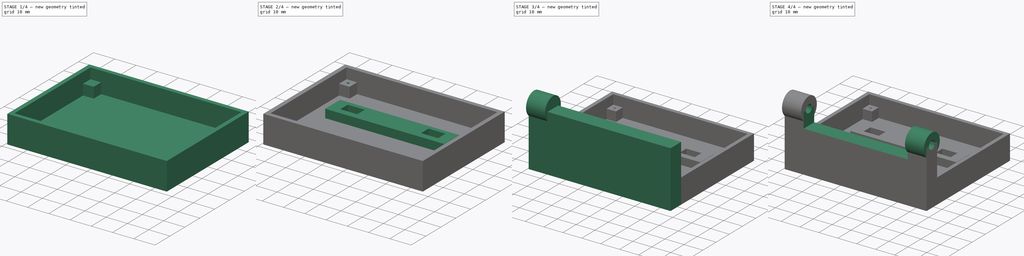
[diagram: build sequence overview — one tinted view per stage of 4, left to right]
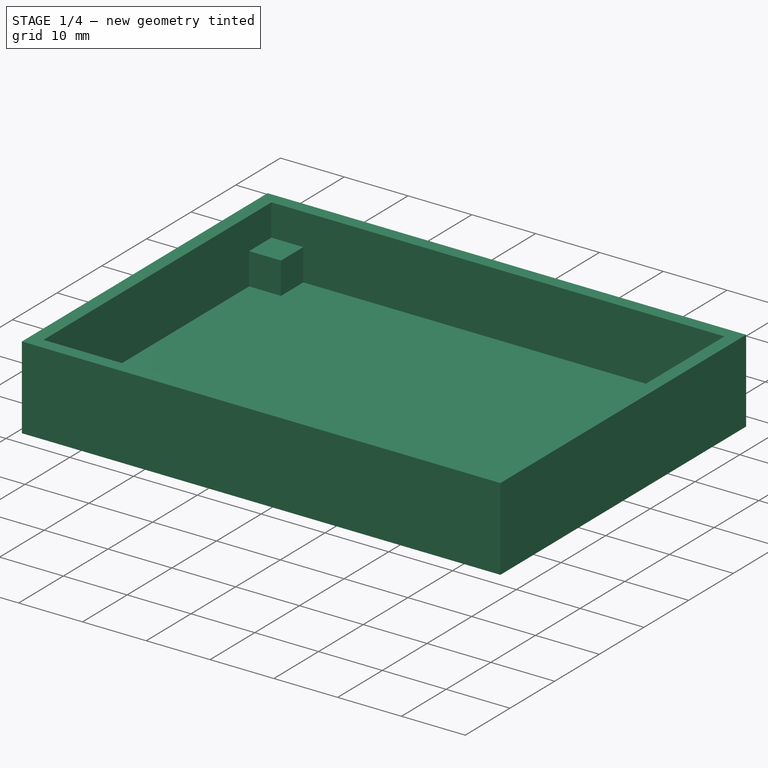
[diagram: stage 1 of 4 — iso view after this stage's code; geometry added in this stage tinted green]
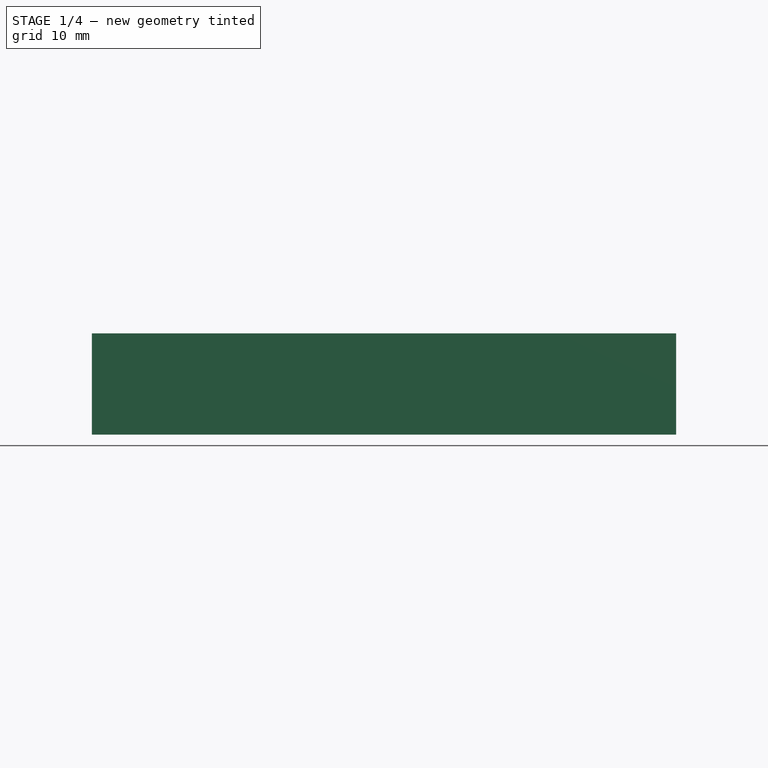
[diagram: stage 1 of 4 — front view after this stage's code; geometry added in this stage tinted green]
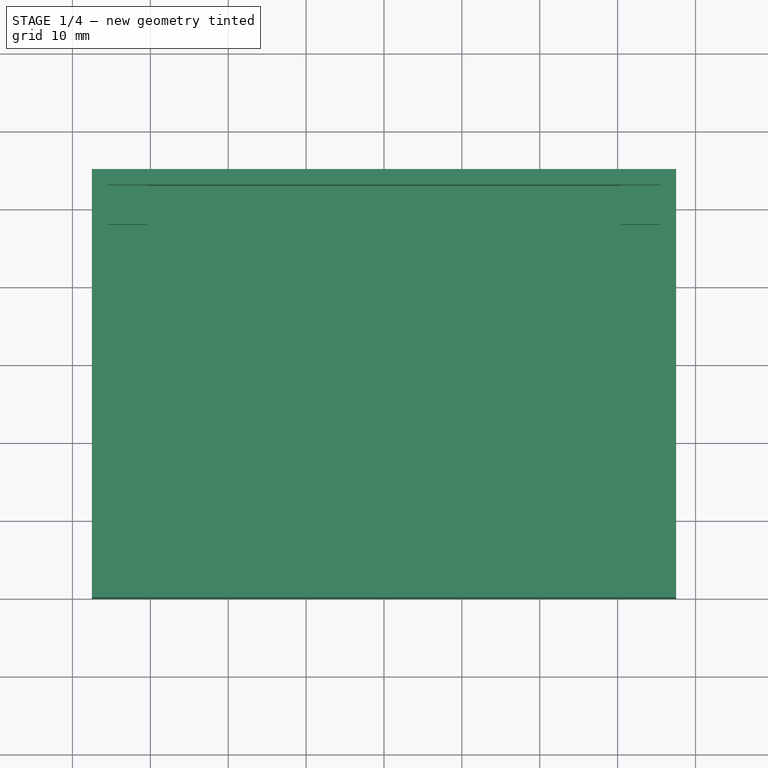
[diagram: stage 1 of 4 — top view after this stage's code; geometry added in this stage tinted green]
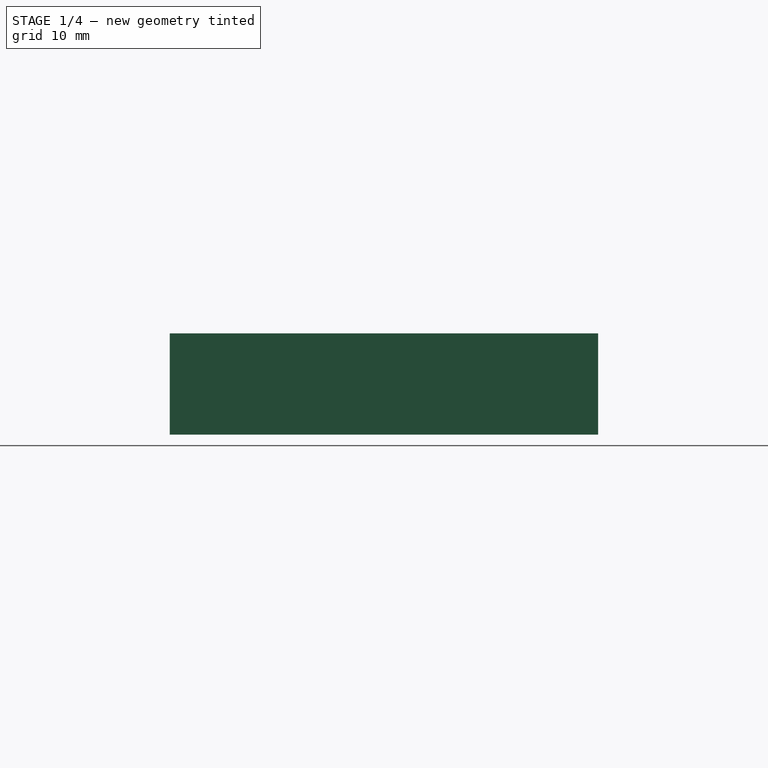
[diagram: stage 1 of 4 — right view after this stage's code; geometry added in this stage tinted green]
FCSTD DOCUMENT  (FreeCAD 0.18R16117 (Git))
Label: TCM2-ModuloWiFI1.1
License: All rights reserved
LicenseURL: http://en.wikipedia.org/wiki/All_rights_reserved
objects: Sketcher::SketchObject×11, PartDesign::Pad×7, PartDesign::Pocket×4, PartDesign::Body×1
note: 34 computed .brp shape members not serialized (recipe doc carries the construction recipe); baked Part::Feature solids carry a one-line shape summary decoded from their .brp

FEATURE [Sketcher::SketchObject] Sketch
  MapMode = 5
  Support = -> [XY_Plane]
  sketch-geometry (4):
    g0: LineSegment StartX=-37.5 StartY=55 StartZ=0 EndX=37.5 EndY=55 EndZ=0
    g1: LineSegment StartX=37.5 StartY=55 StartZ=0 EndX=37.5 EndY=0 EndZ=0
    g2: LineSegment StartX=37.5 StartY=0 StartZ=0 EndX=-37.5 EndY=0 EndZ=0
    g3: LineSegment StartX=-37.5 StartY=0 StartZ=0 EndX=-37.5 EndY=55 EndZ=0
  constraints (12):
    c: Coincident(g0,g1)
    c: Coincident(g1,g2)
    c: Coincident(g2,g3)
    c: Coincident(g3,g0)
    c: Horizontal(g0)
    c: Horizontal(g2)
    c: Vertical(g1)
    c: Vertical(g3)
    c: Distance(g2) = 75
    c: Distance(g1) = 55
    c: PointOnObject(g1,g-1)
    c: DistanceX(g2,g-1) = 37.5
FEATURE [PartDesign::Pad] Pad
  Length = 3
  Length2 = 100
  Profile = -> Sketch
  Type = 0
FEATURE [Sketcher::SketchObject] Sketch001
  MapMode = 5
  Placement = pos=(0,0,3) rot=(0,0,1;0rad)
  Support = -> [Pad]
  sketch-geometry (8):
    g0: LineSegment StartX=-37.5 StartY=55 StartZ=0 EndX=37.5 EndY=55 EndZ=0
    g1: LineSegment StartX=37.5 StartY=55 StartZ=0 EndX=37.5 EndY=0 EndZ=0
    g2: LineSegment StartX=37.5 StartY=0 StartZ=0 EndX=-37.5 EndY=0 EndZ=0
    g3: LineSegment StartX=-37.5 StartY=0 StartZ=0 EndX=-37.5 EndY=55 EndZ=0
    g4: LineSegment StartX=-35.5 StartY=53 StartZ=0 EndX=35.5 EndY=53 EndZ=0
    g5: LineSegment StartX=35.5 StartY=53 StartZ=0 EndX=35.5 EndY=2 EndZ=0
    g6: LineSegment StartX=35.5 StartY=2 StartZ=0 EndX=-35.5 EndY=2 EndZ=0
    g7: LineSegment StartX=-35.5 StartY=2 StartZ=0 EndX=-35.5 EndY=53 EndZ=0
  constraints (24):
    c: Coincident(g0,g1)
    c: Coincident(g1,g2)
    c: Coincident(g2,g3)
    c: Coincident(g3,g0)
    c: Horizontal(g0)
    c: Horizontal(g2)
    c: Vertical(g1)
    c: Vertical(g3)
    c: Coincident(g4,g5)
    c: Coincident(g5,g6)
    c: Coincident(g6,g7)
    c: Coincident(g7,g4)
    c: Horizontal(g4)
    c: Horizontal(g6)
    c: Vertical(g5)
    c: Vertical(g7)
    c: Distance(g1) = 55
    c: Distance(g2) = 75
    c: PointOnObject(g1,g-1)
    c: DistanceX(g2,g-1) = 37.5
    c: Distance(g6) = 71
    c: Distance(g5) = 51
    c: DistanceY(g1,g5) = 2
    c: DistanceX(g2,g6) = 2
FEATURE [PartDesign::Pad] Pad001
  BaseFeature = -> Pad
  Length = 10
  Length2 = 100
  Profile = -> Sketch001
  Type = 0
FEATURE [Sketcher::SketchObject] Sketch002
  MapMode = 5
  Placement = pos=(0,0,3) rot=(0,0,1;0rad)
  Support = -> [Pad001]
  sketch-geometry (16):
    g0: LineSegment StartX=-35.5 StartY=48 StartZ=0 EndX=-30.5 EndY=48 EndZ=0
    g1: LineSegment StartX=-30.5 StartY=48 StartZ=0 EndX=-30.5 EndY=53 EndZ=0
    g2: LineSegment StartX=-30.5 StartY=53 StartZ=0 EndX=-35.5 EndY=53 EndZ=0
    g3: LineSegment StartX=-35.5 StartY=53 StartZ=0 EndX=-35.5 EndY=48 EndZ=0
    g4: LineSegment StartX=30.5 StartY=48 StartZ=0 EndX=35.5 EndY=48 EndZ=0
    g5: LineSegment StartX=35.5 StartY=48 StartZ=0 EndX=35.5 EndY=53 EndZ=0
    g6: LineSegment StartX=35.5 StartY=53 StartZ=0 EndX=30.5 EndY=53 EndZ=0
    g7: LineSegment StartX=30.5 StartY=53 StartZ=0 EndX=30.5 EndY=48 EndZ=0
    g8: LineSegment StartX=30.5 StartY=2 StartZ=0 EndX=35.5 EndY=2 EndZ=0
    g9: LineSegment StartX=35.5 StartY=2 StartZ=0 EndX=35.5 EndY=7 EndZ=0
    g10: LineSegment StartX=35.5 StartY=7 StartZ=0 EndX=30.5 EndY=7 EndZ=0
    g11: LineSegment StartX=30.5 StartY=7 StartZ=0 EndX=30.5 EndY=2 EndZ=0
    g12: LineSegment StartX=-35.5 StartY=2 StartZ=0 EndX=-30.5 EndY=2 EndZ=0
    g13: LineSegment StartX=-30.5 StartY=2 StartZ=0 EndX=-30.5 EndY=7 EndZ=0
    g14: LineSegment StartX=-30.5 StartY=7 StartZ=0 EndX=-35.5 EndY=7 EndZ=0
    g15: LineSegment StartX=-35.5 StartY=7 StartZ=0 EndX=-35.5 EndY=2 EndZ=0
  constraints (48):
    c: Coincident(g0,g1)
    c: Coincident(g1,g2)
    c: Coincident(g2,g3)
    c: Coincident(g3,g0)
    c: Horizontal(g0)
    c: Horizontal(g2)
    c: Vertical(g1)
    c: Vertical(g3)
    c: Coincident(g4,g5)
    c: Coincident(g5,g6)
    c: Coincident(g6,g7)
    c: Coincident(g7,g4)
    c: Horizontal(g4)
    c: Horizontal(g6)
    c: Vertical(g5)
    c: Vertical(g7)
    c: Coincident(g8,g9)
    c: Coincident(g9,g10)
    c: Coincident(g10,g11)
    c: Coincident(g11,g8)
    c: Horizontal(g8)
    c: Horizontal(g10)
    c: Vertical(g9)
    c: Vertical(g11)
    c: Coincident(g12,g13)
    c: Coincident(g13,g14)
    c: Coincident(g14,g15)
    c: Coincident(g15,g12)
    c: Horizontal(g12)
    c: Horizontal(g14)
    c: Vertical(g13)
    c: Vertical(g15)
    c: Distance(g1) = 5
    c: Distance(g0) = 5
    c: Distance(g4) = 5
    c: Distance(g5) = 5
    c: Distance(g10) = 5
    c: Distance(g9) = 5
    c: Distance(g14) = 5
    c: Distance(g13) = 5
    c: DistanceX(g12,g8) = 71
    c: DistanceX(g2,g5) = 71
    c: DistanceY(g8,g5) = 51
    c: DistanceY(g12,g1) = 51
    c: DistanceX(g0,g-1) = 35.5
    c: DistanceX(g14,g-1) = 35.5
    c: DistanceY(g-1,g12) = 2
    c: DistanceY(g-1,g8) = 2
FEATURE [PartDesign::Pad] Pad002
  BaseFeature = -> Pad001
  Length = 5
  Length2 = 100
  Profile = -> Sketch002
  Type = 0
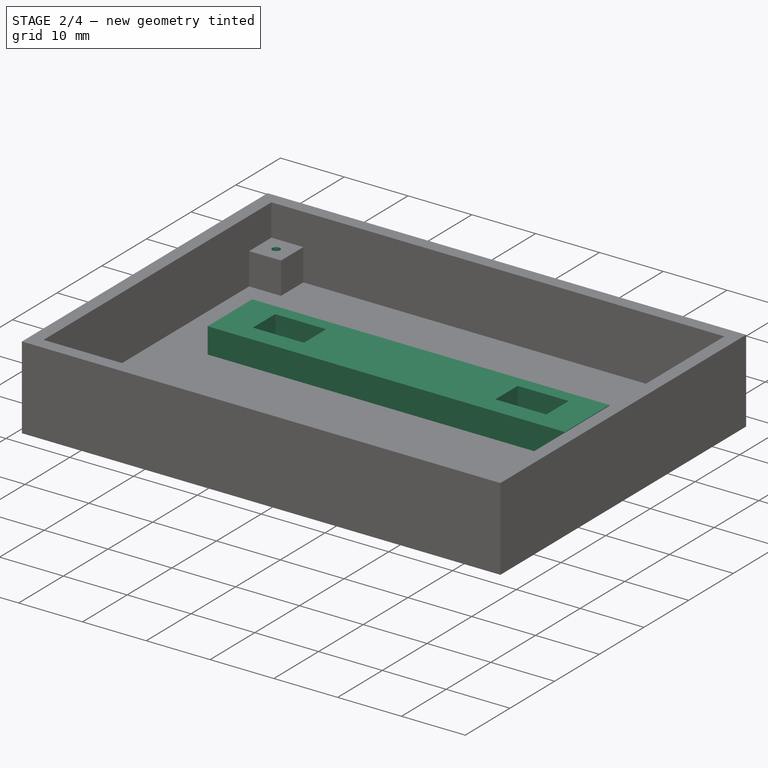
[diagram: stage 2 of 4 — iso view after this stage's code; geometry added in this stage tinted green]
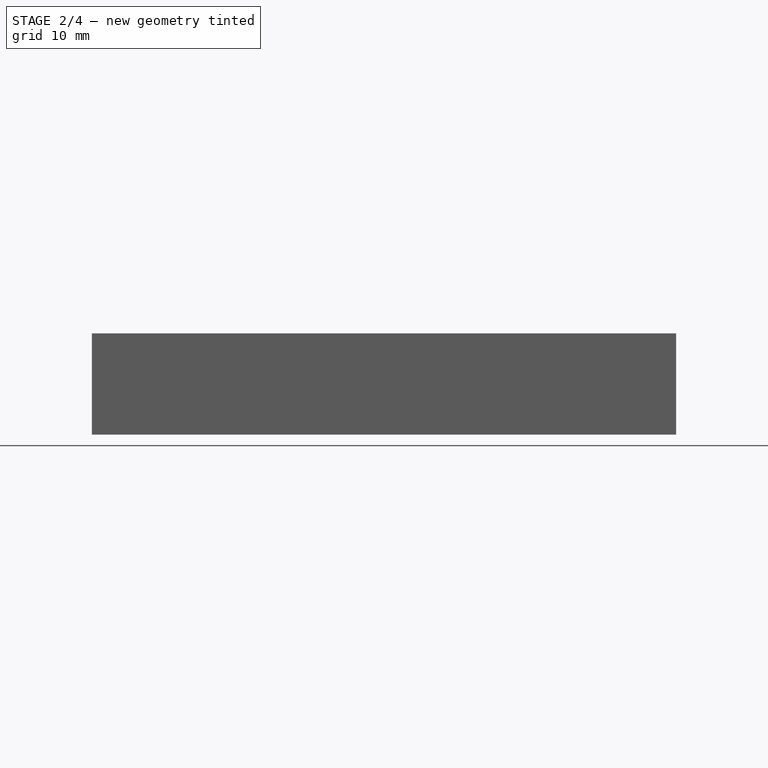
[diagram: stage 2 of 4 — front view after this stage's code; geometry added in this stage tinted green]
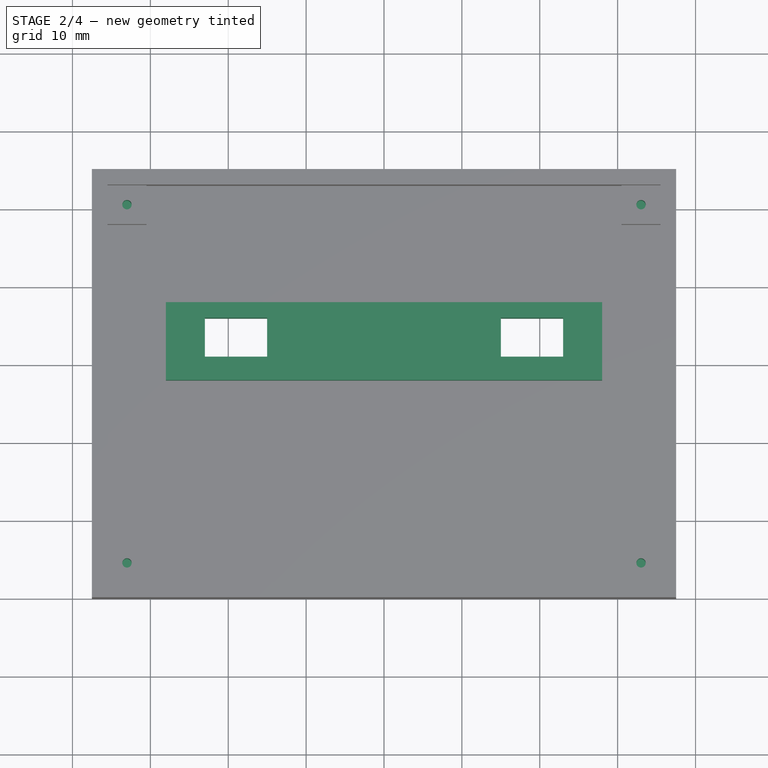
[diagram: stage 2 of 4 — top view after this stage's code; geometry added in this stage tinted green]
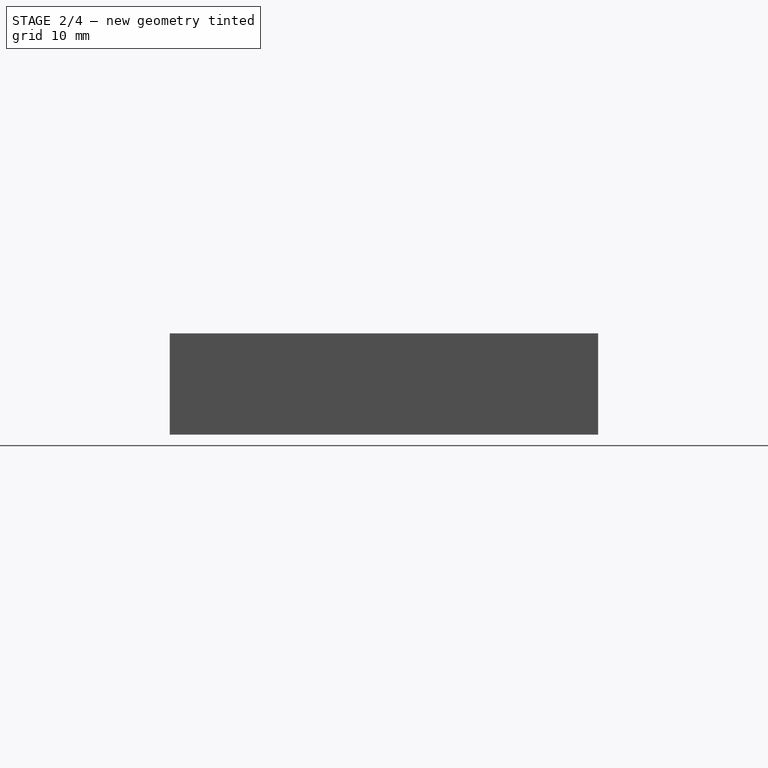
[diagram: stage 2 of 4 — right view after this stage's code; geometry added in this stage tinted green]
FEATURE [Sketcher::SketchObject] Sketch011
  MapMode = 5
  Placement = pos=(0,0,8) rot=(0,0,1;0rad)
  sketch-geometry (4):
    g0: Circle CenterX=-33 CenterY=4.5 CenterZ=0 NormalX=0 NormalY=0 NormalZ=1 AngleXU=0 Radius=0.6
    g1: Circle CenterX=33 CenterY=4.5 CenterZ=0 NormalX=0 NormalY=0 NormalZ=1 AngleXU=0 Radius=0.6
    g2: Circle CenterX=-33 CenterY=50.5 CenterZ=0 NormalX=0 NormalY=0 NormalZ=1 AngleXU=0 Radius=0.6
    g3: Circle CenterX=33 CenterY=50.5 CenterZ=0 NormalX=0 NormalY=0 NormalZ=1 AngleXU=0 Radius=0.6
  constraints (12):
    c: Diameter(g2) = 1.2
    c: Diameter(g3) = 1.2
    c: Diameter(g1) = 1.2
    c: Diameter(g0) = 1.2
    c: DistanceX(g0,g1) = 66
    c: DistanceY(g1,g3) = 46
    c: DistanceX(g2,g3) = 66
    c: DistanceY(g0,g2) = 46
    c: DistanceY(g-1,g1) = 4.5
    c: DistanceY(g-1,g0) = 4.5
    c: DistanceX(g0,g-1) = 33
    c: DistanceX(g2,g-1) = 33
FEATURE [PartDesign::Pocket] Pocket004
  BaseFeature = -> Pad002
  Length = 5
  Length2 = 100
  Profile = -> Sketch011
  Type = 0
FEATURE [Sketcher::SketchObject] Sketch012
  MapMode = 5
  Placement = pos=(0,0,3) rot=(0,0,1;0rad)
  Support = -> [Pocket004]
  sketch-geometry (4):
    g0: LineSegment StartX=-28 StartY=38 StartZ=0 EndX=28 EndY=38 EndZ=0
    g1: LineSegment StartX=28 StartY=38 StartZ=0 EndX=28 EndY=28 EndZ=0
    g2: LineSegment StartX=28 StartY=28 StartZ=0 EndX=-28 EndY=28 EndZ=0
    g3: LineSegment StartX=-28 StartY=28 StartZ=0 EndX=-28 EndY=38 EndZ=0
  constraints (12):
    c: Coincident(g0,g1)
    c: Coincident(g1,g2)
    c: Coincident(g2,g3)
    c: Coincident(g3,g0)
    c: Horizontal(g0)
    c: Horizontal(g2)
    c: Vertical(g1)
    c: Vertical(g3)
    c: Distance(g0) = 56
    c: DistanceX(g0,g-1) = 28
    c: Distance(g1) = 10
    c: DistanceY(g-1,g1) = 28
FEATURE [PartDesign::Pad] Pad003
  BaseFeature = -> Pocket004
  Length = 4
  Length2 = 100
  Profile = -> Sketch012
  Type = 0
FEATURE [Sketcher::SketchObject] Sketch013
  MapMode = 5
  Placement = pos=(0,0,7) rot=(0,0,1;0rad)
  Support = -> [Pad003]
  sketch-geometry (8):
    g0: LineSegment StartX=-23 StartY=36 StartZ=0 EndX=-15 EndY=36 EndZ=0
    g1: LineSegment StartX=-15 StartY=36 StartZ=0 EndX=-15 EndY=31 EndZ=0
    g2: LineSegment StartX=-15 StartY=31 StartZ=0 EndX=-23 EndY=31 EndZ=0
    g3: LineSegment StartX=-23 StartY=31 StartZ=0 EndX=-23 EndY=36 EndZ=0
    g4: LineSegment StartX=15 StartY=36 StartZ=0 EndX=23 EndY=36 EndZ=0
    g5: LineSegment StartX=23 StartY=36 StartZ=0 EndX=23 EndY=31 EndZ=0
    g6: LineSegment StartX=23 StartY=31 StartZ=0 EndX=15 EndY=31 EndZ=0
    g7: LineSegment StartX=15 StartY=31 StartZ=0 EndX=15 EndY=36 EndZ=0
  constraints (24):
    c: Coincident(g0,g1)
    c: Coincident(g1,g2)
    c: Coincident(g2,g3)
    c: Coincident(g3,g0)
    c: Horizontal(g0)
    c: Horizontal(g2)
    c: Vertical(g1)
    c: Vertical(g3)
    c: Coincident(g4,g5)
    c: Coincident(g5,g6)
    c: Coincident(g6,g7)
    c: Coincident(g7,g4)
    c: Horizontal(g4)
    c: Horizontal(g6)
    c: Vertical(g5)
    c: Vertical(g7)
    c: Distance(g5) = 5
    c: Distance(g1) = 5
    c: Distance(g0) = 8
    c: Distance(g4) = 8
    c: DistanceX(g-1,g4) = 15
    c: DistanceX(g0,g-1) = 15
    c: DistanceY(g-1,g6) = 31
    c: DistanceY(g-1,g1) = 31
FEATURE [PartDesign::Pocket] Pocket
  BaseFeature = -> Pad003
  Length = 8
  Length2 = 100
  Profile = -> Sketch013
  Type = 0
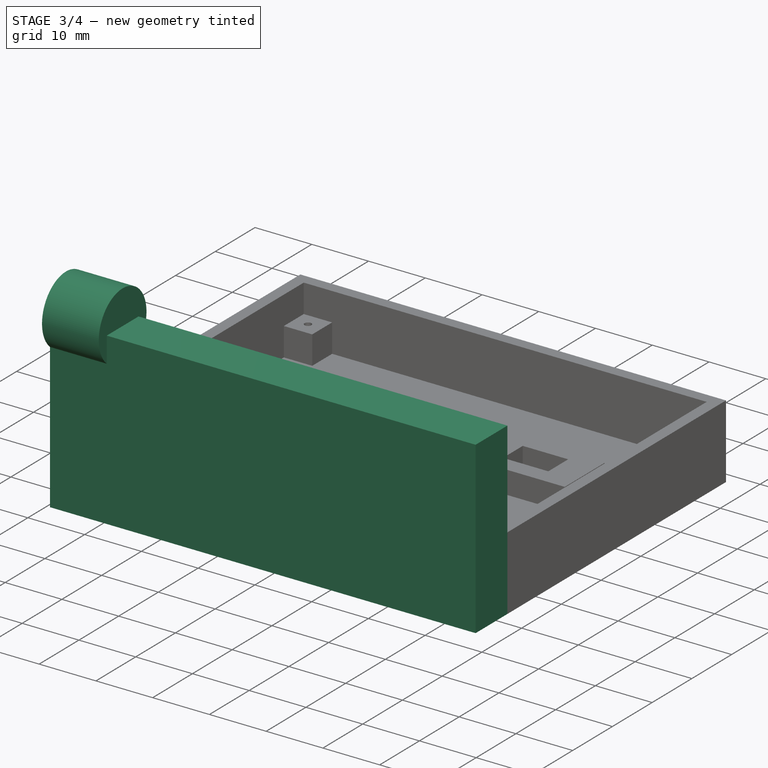
[diagram: stage 3 of 4 — iso view after this stage's code; geometry added in this stage tinted green]
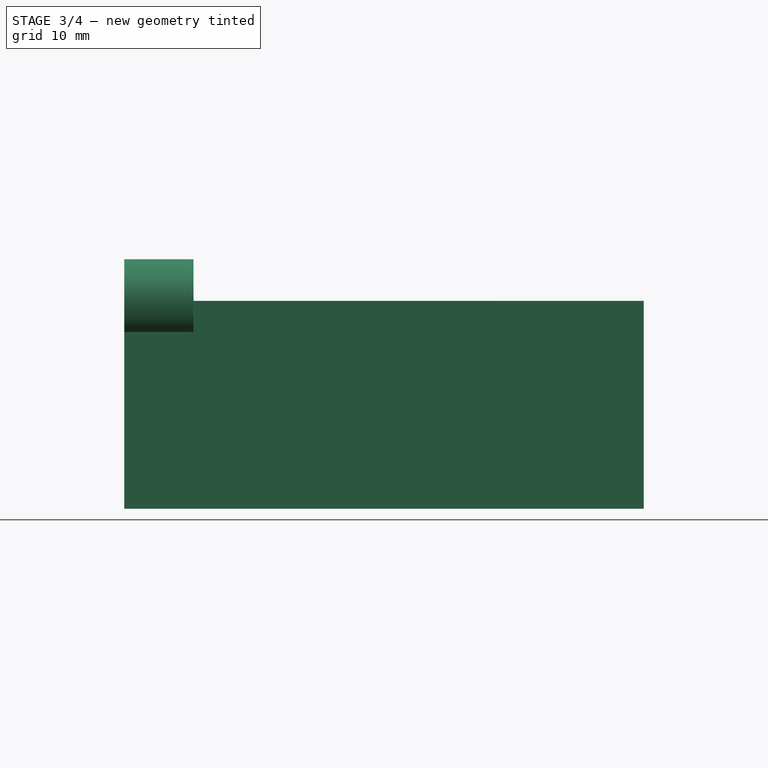
[diagram: stage 3 of 4 — front view after this stage's code; geometry added in this stage tinted green]
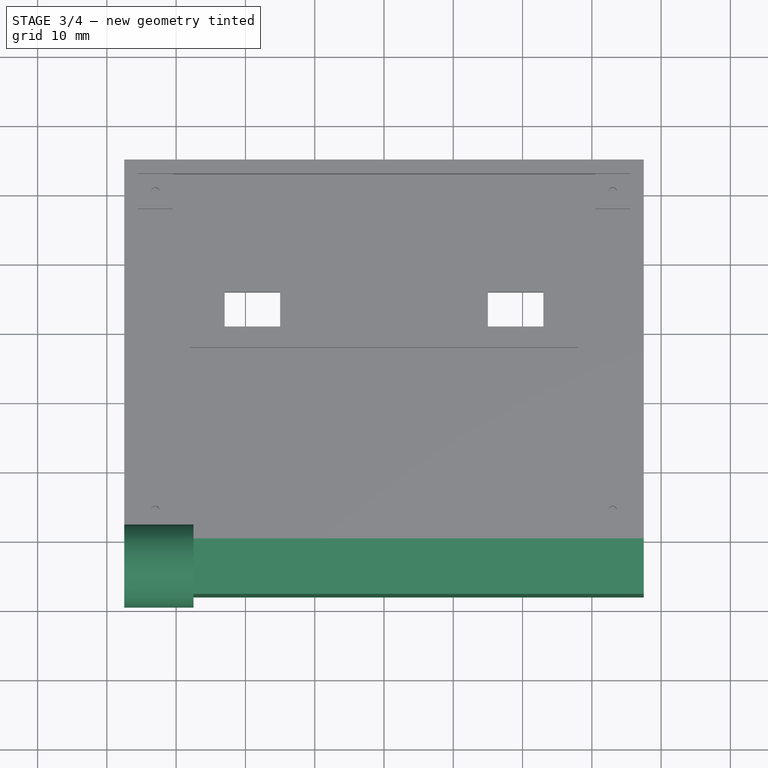
[diagram: stage 3 of 4 — top view after this stage's code; geometry added in this stage tinted green]
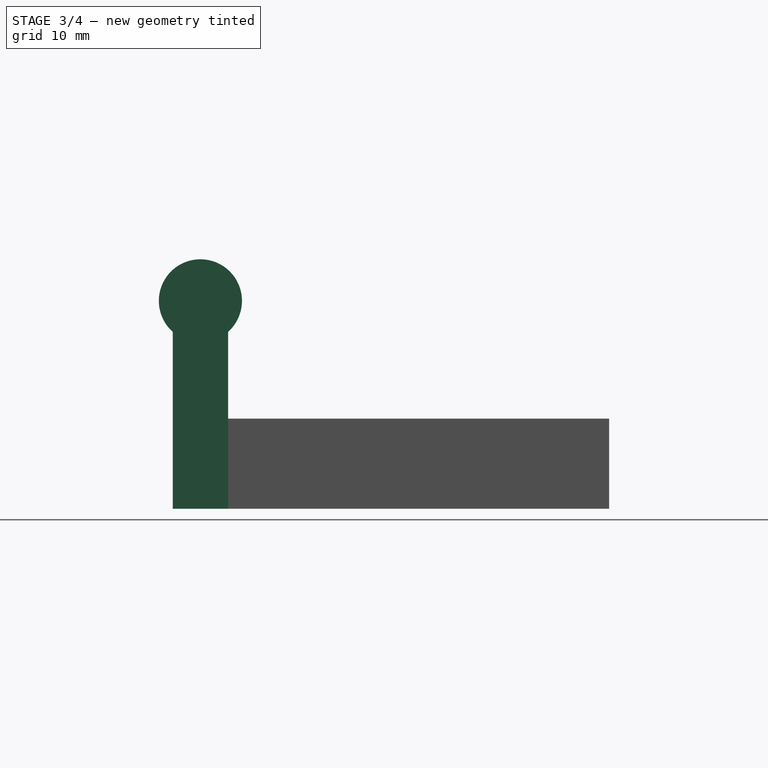
[diagram: stage 3 of 4 — right view after this stage's code; geometry added in this stage tinted green]
FEATURE [Sketcher::SketchObject] Sketch014
  MapMode = 5
  Placement = pos=(0,0,0) rot=(1,0,0;3.14159rad)
  Support = -> [Pocket]
  sketch-geometry (4):
    g0: LineSegment StartX=-37.5 StartY=8 StartZ=0 EndX=37.5 EndY=8 EndZ=0
    g1: LineSegment StartX=37.5 StartY=8 StartZ=0 EndX=37.5 EndY=0 EndZ=0
    g2: LineSegment StartX=37.5 StartY=0 StartZ=0 EndX=-37.5 EndY=0 EndZ=0
    g3: LineSegment StartX=-37.5 StartY=0 StartZ=0 EndX=-37.5 EndY=8 EndZ=0
  constraints (12):
    c: Coincident(g0,g1)
    c: Coincident(g1,g2)
    c: Coincident(g2,g3)
    c: Coincident(g3,g0)
    c: Horizontal(g0)
    c: Horizontal(g2)
    c: Vertical(g1)
    c: Vertical(g3)
    c: PointOnObject(g1,g-1)
    c: Distance(g2) = 75
    c: DistanceX(g-1,g1) = 37.5
    c: Distance(g1) = 8
FEATURE [PartDesign::Pad] Pad004
  BaseFeature = -> Pocket
  Length = 30
  Length2 = 100
  Profile = -> Sketch014
  Reversed = true
  Type = 0
FEATURE [Sketcher::SketchObject] Sketch015
  MapMode = 5
  Placement = pos=(-37.5,0,0) rot=(0.57735,-0.57735,-0.57735;2.0944rad)
  Support = -> [Pad004]
  sketch-geometry (1):
    g0: Circle CenterX=4 CenterY=30 CenterZ=0 NormalX=0 NormalY=0 NormalZ=1 AngleXU=0 Radius=6
  constraints (3):
    c: DistanceX(g-1,g0) = 4
    c: DistanceY(g-1,g0) = 30
    c: Radius(g0) = 6
FEATURE [PartDesign::Pad] Pad005
  BaseFeature = -> Pad004
  Length = 10
  Length2 = 100
  Profile = -> Sketch015
  Reversed = true
  Type = 0
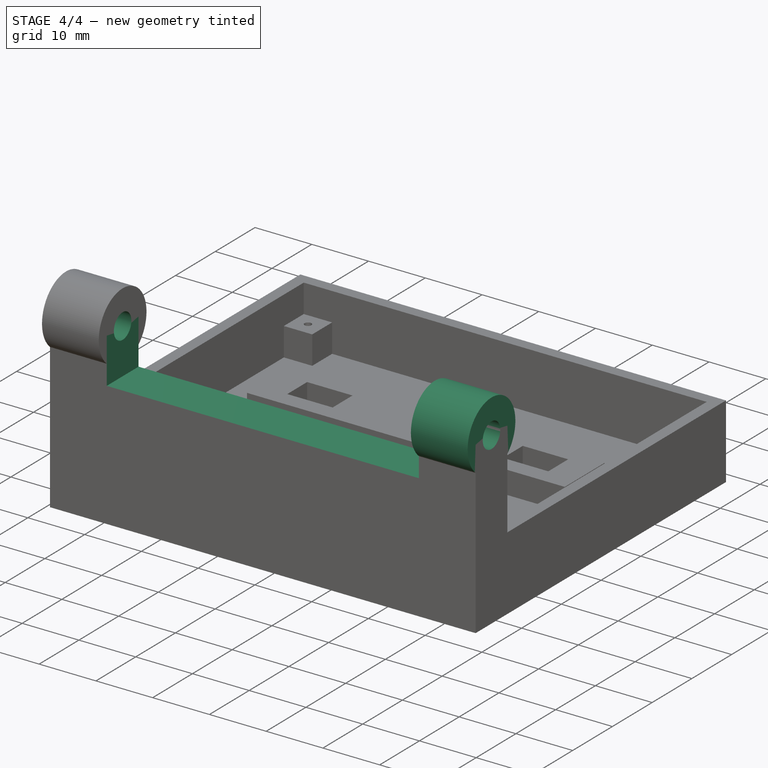
[diagram: stage 4 of 4 — iso view after this stage's code; geometry added in this stage tinted green]
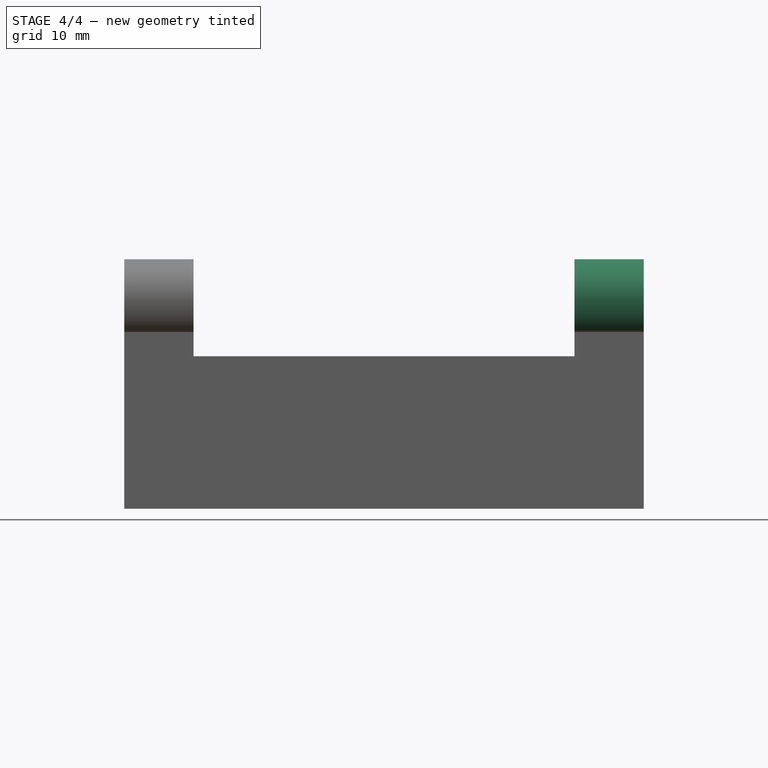
[diagram: stage 4 of 4 — front view after this stage's code; geometry added in this stage tinted green]
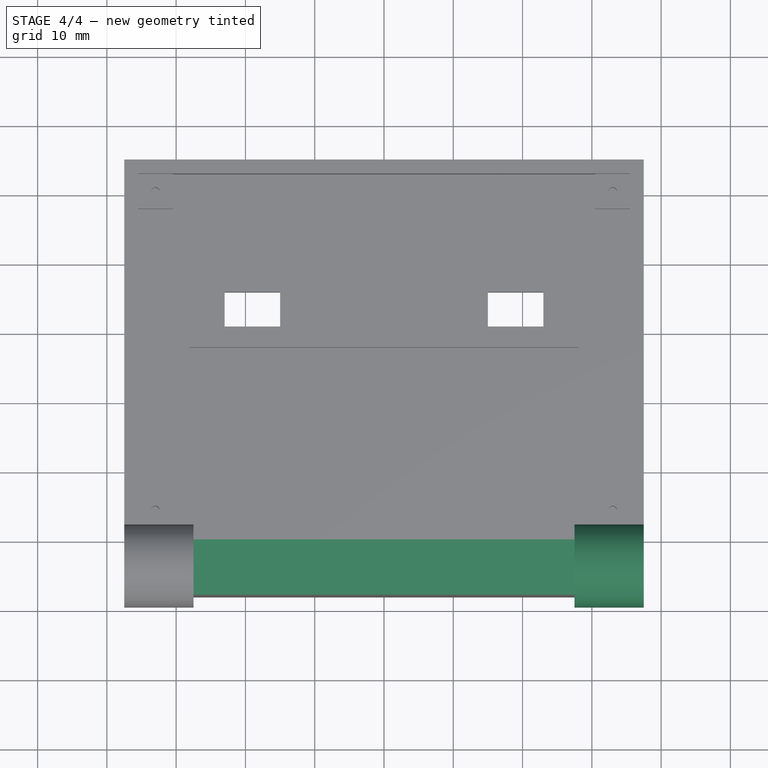
[diagram: stage 4 of 4 — top view after this stage's code; geometry added in this stage tinted green]
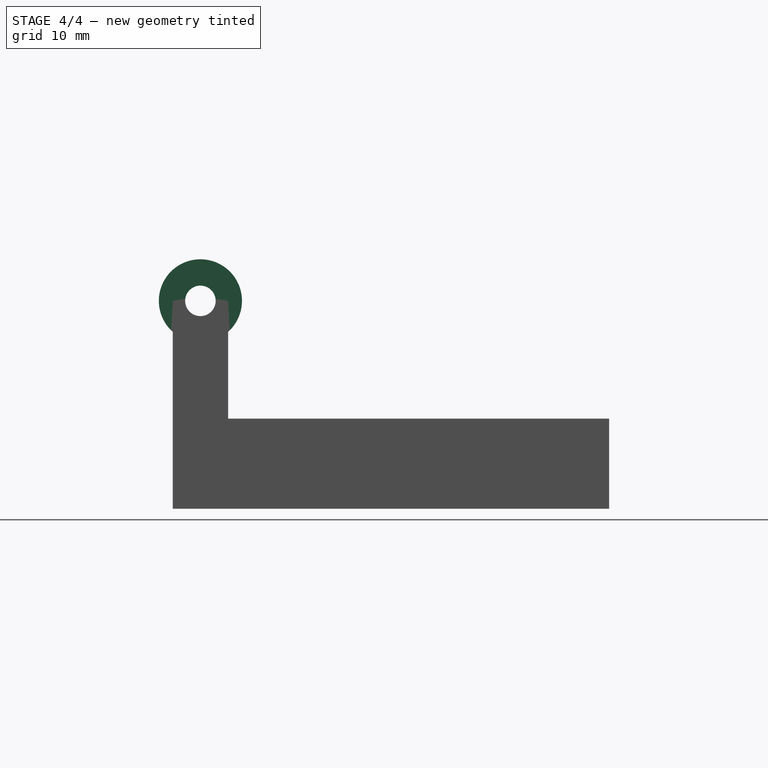
[diagram: stage 4 of 4 — right view after this stage's code; geometry added in this stage tinted green]
FEATURE [Sketcher::SketchObject] Sketch016
  MapMode = 5
  Placement = pos=(37.5,0,0) rot=(0.57735,0.57735,0.57735;2.0944rad)
  Support = -> [Pad005]
  sketch-geometry (1):
    g0: Circle CenterX=-4 CenterY=30 CenterZ=0 NormalX=0 NormalY=0 NormalZ=1 AngleXU=0 Radius=6
  constraints (3):
    c: DistanceX(g0,g-1) = 4
    c: DistanceY(g-1,g0) = 30
    c: Radius(g0) = 6
FEATURE [PartDesign::Pad] Pad006
  BaseFeature = -> Pad005
  Length = 10
  Length2 = 100
  Profile = -> Sketch016
  Reversed = true
  Type = 0
FEATURE [Sketcher::SketchObject] Sketch017
  MapMode = 5
  Placement = pos=(37.5,0,0) rot=(0.57735,0.57735,0.57735;2.0944rad)
  Support = -> [Pad006]
  sketch-geometry (1):
    g0: Circle CenterX=-4 CenterY=30 CenterZ=0 NormalX=0 NormalY=0 NormalZ=1 AngleXU=0 Radius=2.2
  constraints (3):
    c: DistanceX(g0,g-1) = 4
    c: DistanceY(g-1,g0) = 30
    c: Radius(g0) = 2.2
FEATURE [PartDesign::Pocket] Pocket005
  BaseFeature = -> Pad006
  Length = 75
  Length2 = 100
  Profile = -> Sketch017
  Type = 0
FEATURE [Sketcher::SketchObject] Sketch018
  MapMode = 5
  Placement = pos=(0,0,30) rot=(0,0,1;0rad)
  Support = -> [Pocket005]
  sketch-geometry (4):
    g0: LineSegment StartX=-27.5 StartY=0 StartZ=0 EndX=27.5 EndY=0 EndZ=0
    g1: LineSegment StartX=27.5 StartY=0 StartZ=0 EndX=27.5 EndY=-8 EndZ=0
    g2: LineSegment StartX=27.5 StartY=-8 StartZ=0 EndX=-27.5 EndY=-8 EndZ=0
    g3: LineSegment StartX=-27.5 StartY=-8 StartZ=0 EndX=-27.5 EndY=0 EndZ=0
  constraints (12):
    c: Coincident(g0,g1)
    c: Coincident(g1,g2)
    c: Coincident(g2,g3)
    c: Coincident(g3,g0)
    c: Horizontal(g0)
    c: Horizontal(g2)
    c: Vertical(g1)
    c: Vertical(g3)
    c: Distance(g0) = 55
    c: PointOnObject(g0,g-1)
    c: DistanceX(g-1,g0) = 27.5
    c: Distance(g1) = 8
FEATURE [PartDesign::Pocket] Pocket006
  BaseFeature = -> Pocket005
  Length = 8
  Length2 = 100
  Profile = -> Sketch018
  Type = 0
FEATURE [PartDesign::Body] Body
  Group = -> [Sketch,Pad,Sketch001,Pad001,Sketch002,Pad002,Sketch011,Pocket004,Sketch012,Pad003,Sketch013,Pocket,Sketch014,Pad004,Sketch015,Pad005,Sketch016,Pad006,Sketch017,Pocket005,Sketch018,Pocket006]
  Origin = -> Origin
  Tip = -> Pocket006
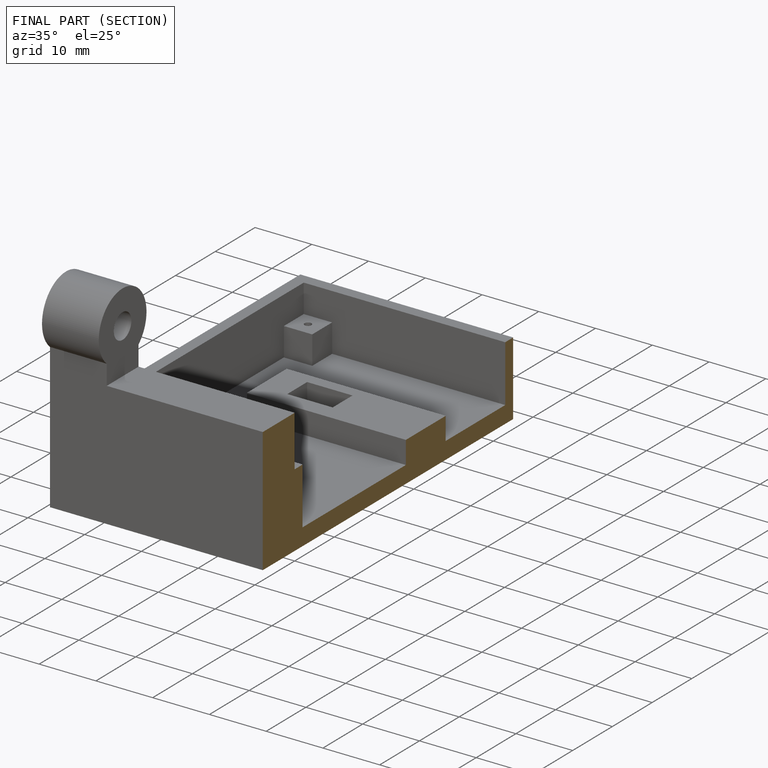
[diagram: finished part — half-section view (interior)]
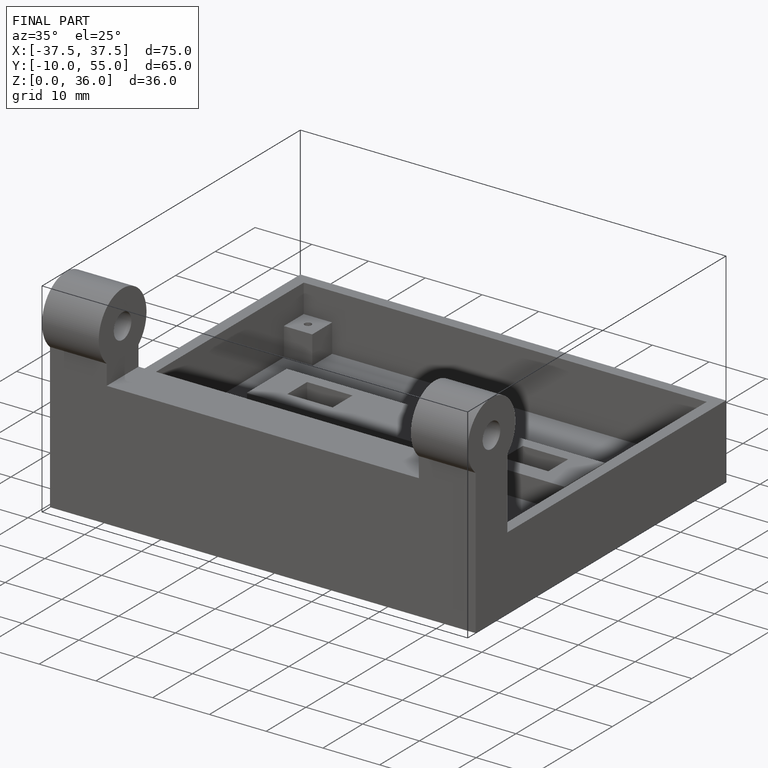
[diagram: finished part — iso view with bounding-box wireframe]
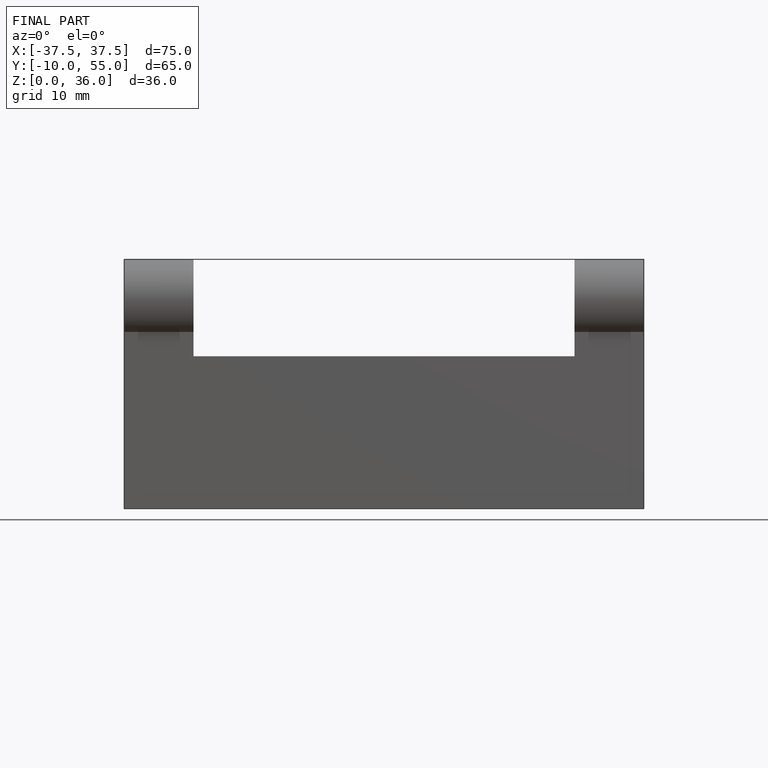
[diagram: finished part — front view with bounding-box wireframe]
